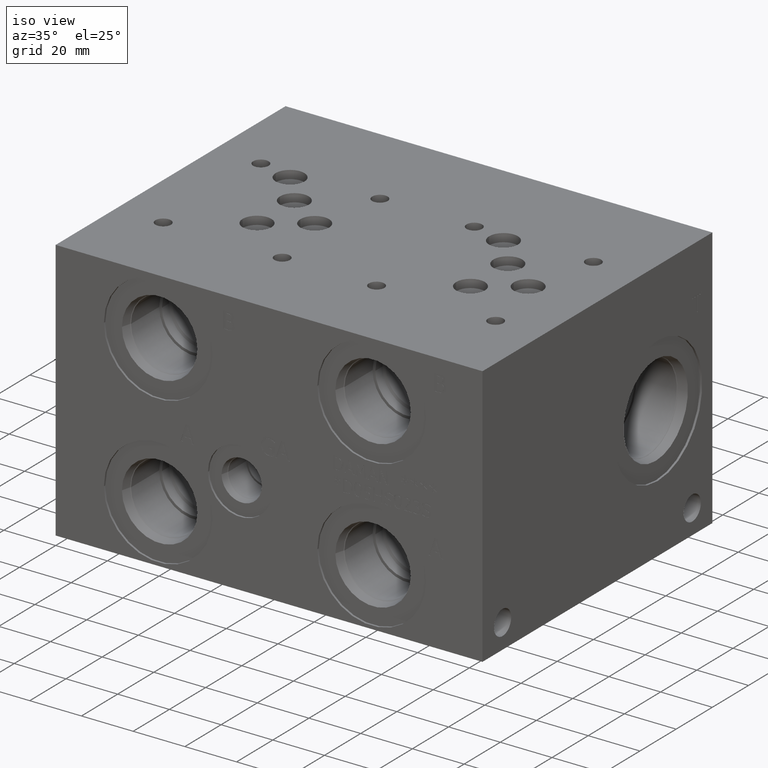
[diagram: clean part render]
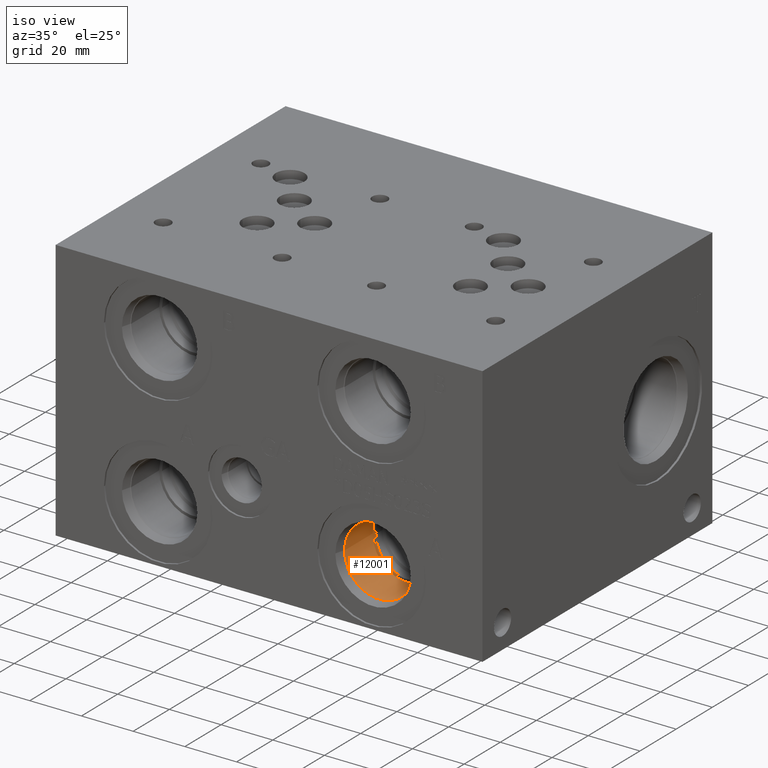
[diagram: same view with one face highlighted and labeled with its STEP entity id]
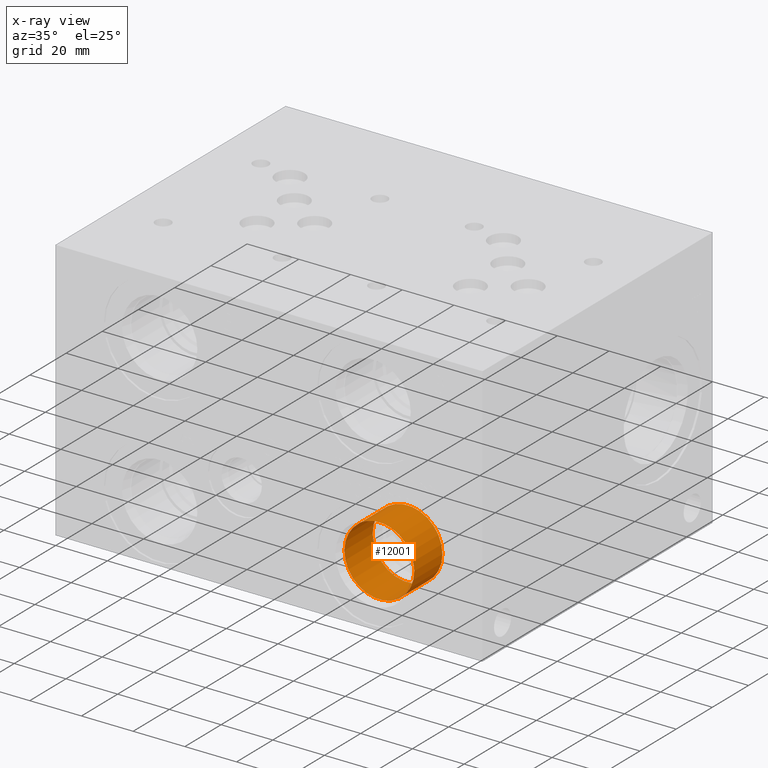
[diagram: x-ray of the same camera — body ghosted, the highlighted face saturated]
A machine part, iso view. The second image highlights one B-rep face of the part: STEP entity #12001.
The next image is the same camera in x-ray: the body ghosted, the highlighted face saturated — about 0% of this face is hidden behind the body in this view.
In plain terms, the highlighted cylindrical surface (bore or boss wall) has radius 13.5001 mm, axis along (0, -1, 0).
Its self-contained STEP definition (entity closure, byte-faithful):
#46=CYLINDRICAL_SURFACE('',#12604,13.5001);
#248=CIRCLE('',#12576,13.5001);
#263=CIRCLE('',#12601,13.5001);
#264=CIRCLE('',#12602,13.5001);
#1520=FACE_OUTER_BOUND('',#2202,.T.);
#2202=EDGE_LOOP('',(#10243,#10244,#10245,#10246,#10247));
#3337=LINE('',#20504,#4425);
#4425=VECTOR('',#14852,13.5001);
#5478=VERTEX_POINT('',#20445);
#5495=VERTEX_POINT('',#20497);
#5496=VERTEX_POINT('',#20498);
#7099=EDGE_CURVE('',#5478,#5478,#248,.T.);
#7123=EDGE_CURVE('',#5495,#5496,#263,.T.);
#7124=EDGE_CURVE('',#5496,#5495,#264,.T.);
#7126=EDGE_CURVE('',#5478,#5496,#3337,.T.);
#10243=ORIENTED_EDGE('',*,*,#7099,.T.);
#10244=ORIENTED_EDGE('',*,*,#7126,.T.);
#10245=ORIENTED_EDGE('',*,*,#7123,.F.);
#10246=ORIENTED_EDGE('',*,*,#7124,.F.);
#10247=ORIENTED_EDGE('',*,*,#7126,.F.);
#12001=ADVANCED_FACE('',(#1520),#46,.F.);
#12576=AXIS2_PLACEMENT_3D('',#20447,#14785,#14786);
#12601=AXIS2_PLACEMENT_3D('',#20499,#14844,#14845);
#12602=AXIS2_PLACEMENT_3D('',#20500,#14846,#14847);
#12604=AXIS2_PLACEMENT_3D('',#20503,#14850,#14851);
#14785=DIRECTION('center_axis',(0.,-1.,0.));
#14786=DIRECTION('ref_axis',(1.,0.,0.));
#14844=DIRECTION('center_axis',(0.,-1.,0.));
#14845=DIRECTION('ref_axis',(1.,0.,0.));
#14846=DIRECTION('center_axis',(0.,-1.,0.));
#14847=DIRECTION('ref_axis',(1.,0.,0.));
#14850=DIRECTION('center_axis',(0.,-1.,0.));
#14851=DIRECTION('ref_axis',(1.,0.,0.));
#14852=DIRECTION('',(0.,1.,0.));
#20445=CARTESIAN_POINT('',(108.7247,4.27990000000001,22.225));
#20447=CARTESIAN_POINT('Origin',(122.2248,4.27990000000001,22.225));
#20497=CARTESIAN_POINT('',(135.7249,19.8374,22.225));
#20498=CARTESIAN_POINT('',(108.7247,19.8374,22.225));
#20499=CARTESIAN_POINT('Origin',(122.2248,19.8374,22.225));
#20500=CARTESIAN_POINT('Origin',(122.2248,19.8374,22.225));
#20503=CARTESIAN_POINT('Origin',(122.2248,9.9187,22.225));
#20504=CARTESIAN_POINT('',(108.7247,9.9187,22.225));